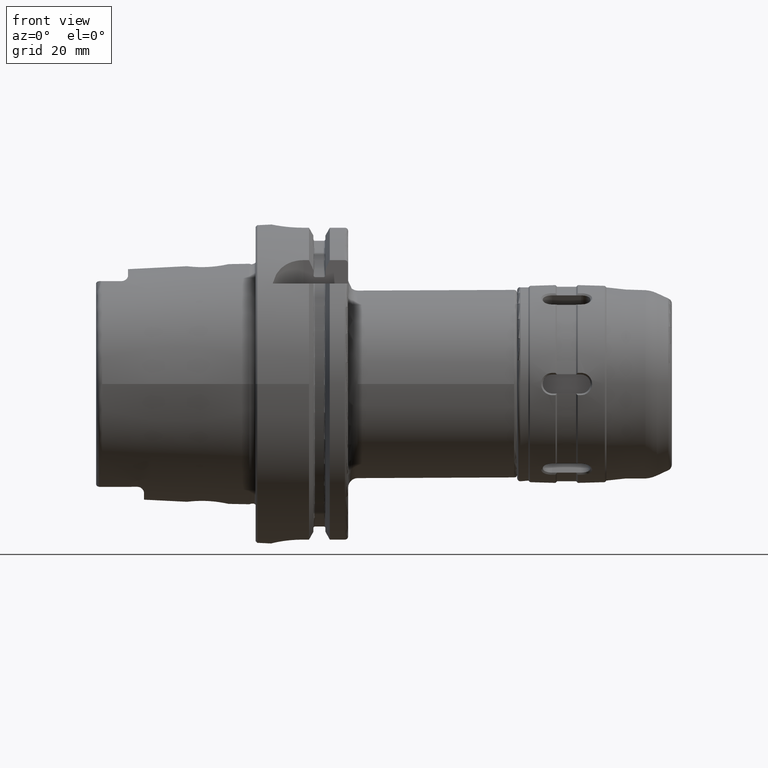
[diagram: clean part render]
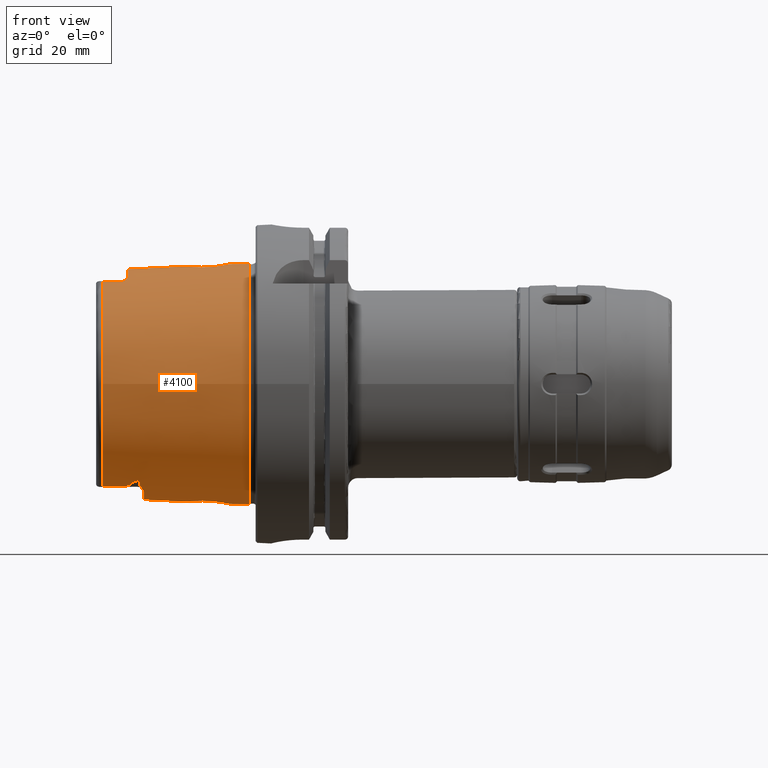
[diagram: same view with one face highlighted and labeled with its STEP entity id]
A machine part, front view. The second image highlights one B-rep face of the part: STEP entity #4100.
In plain terms, the highlighted conical surface has half-angle 2.868 deg.
Its self-contained STEP definition (entity closure, byte-faithful):
#29=(
BOUNDED_CURVE()
B_SPLINE_CURVE(2,(#6570,#6571,#6572),.UNSPECIFIED.,.F.,.F.)
B_SPLINE_CURVE_WITH_KNOTS((3,3),(0.584552731684763,1.01274112792473),
 .UNSPECIFIED.)
CURVE()
GEOMETRIC_REPRESENTATION_ITEM()
RATIONAL_B_SPLINE_CURVE((1.00299496728687,1.00299496728687,1.00138797244737))
REPRESENTATION_ITEM('')
);
#30=(
BOUNDED_CURVE()
B_SPLINE_CURVE(2,(#6639,#6640,#6641),.UNSPECIFIED.,.F.,.F.)
B_SPLINE_CURVE_WITH_KNOTS((3,3),(0.156364335444822,0.584552731684782),
 .UNSPECIFIED.)
CURVE()
GEOMETRIC_REPRESENTATION_ITEM()
RATIONAL_B_SPLINE_CURVE((1.00138797244738,1.00299496728688,1.00299496728688))
REPRESENTATION_ITEM('')
);
#106=B_SPLINE_CURVE_WITH_KNOTS('',3,(#6249,#6250,#6251,#6252,#6253,#6254,
#6255,#6256,#6257,#6258,#6259,#6260,#6261,#6262,#6263,#6264,#6265,#6266),
 .UNSPECIFIED.,.F.,.F.,(4,2,2,2,2,2,2,2,4),(1.82139636410114,1.83165892733975,
1.84192149057836,1.86244661705558,1.93660019990987,2.01075378276416,2.21475865094393,
2.41876351912369,2.7012608097453),.UNSPECIFIED.);
#107=B_SPLINE_CURVE_WITH_KNOTS('',3,(#6291,#6292,#6293,#6294,#6295,#6296,
#6297,#6298,#6299,#6300,#6301,#6302,#6303,#6304,#6305,#6306,#6307,#6308),
 .UNSPECIFIED.,.F.,.F.,(4,2,2,2,2,2,2,2,4),(0.941531918456969,1.22402920907858,
1.42803407725834,1.6320389454381,1.70619252829239,1.78034611114668,1.80087123762391,
1.81113380086252,1.82139636410113),.UNSPECIFIED.);
#110=B_SPLINE_CURVE_WITH_KNOTS('',3,(#6359,#6360,#6361,#6362,#6363,#6364,
#6365,#6366),.UNSPECIFIED.,.F.,.F.,(4,2,2,4),(2.11861414458057,2.2150675983984,
2.41910198133518,2.70152248778045),.UNSPECIFIED.);
#111=B_SPLINE_CURVE_WITH_KNOTS('',3,(#6383,#6384,#6385,#6386,#6387,#6388,
#6389,#6390),.UNSPECIFIED.,.F.,.F.,(4,2,2,4),(0.941785791175404,1.22420629762067,
1.42824068055745,1.52469413437528),.UNSPECIFIED.);
#115=B_SPLINE_CURVE_WITH_KNOTS('',3,(#6537,#6538,#6539,#6540,#6541,#6542,
#6543,#6544,#6545,#6546,#6547,#6548,#6549,#6550,#6551,#6552,#6553,#6554,
#6555,#6556,#6557,#6558,#6559,#6560),.UNSPECIFIED.,.T.,.F.,(4,1,1,1,1,1,
1,1,1,1,1,1,1,1,1,1,1,1,1,1,1,4),(-3.62526060553391,-3.36631341942435,-3.23683982636957,
-3.10736623331478,-2.91315584373261,-2.84841904720522,-2.58947186109565,
-2.41684040368928,-2.2442089462829,-2.07157748887652,-1.89894603147015,
-1.72631457406377,-1.55368311665739,-1.42420952360261,-1.29473593054783,
-1.16526233749304,-1.03578874443826,-0.776841558328696,-0.517894372219131,
-0.388420779164348,-0.258947186109565,0.),.UNSPECIFIED.);
#116=B_SPLINE_CURVE_WITH_KNOTS('',3,(#6574,#6575,#6576,#6577,#6578,#6579,
#6580,#6581,#6582,#6583,#6584,#6585,#6586,#6587,#6588,#6589,#6590,#6591),
 .UNSPECIFIED.,.F.,.F.,(4,2,2,2,2,2,2,2,4),(0.,0.135304265390776,0.202956398086165,
0.270608530781553,0.285985760505599,0.293674375367623,0.301362990229646,
0.309065814809453,0.312240543595572),.UNSPECIFIED.);
#117=B_SPLINE_CURVE_WITH_KNOTS('',3,(#6593,#6594,#6595,#6596,#6597,#6598,
#6599,#6600,#6601,#6602),.UNSPECIFIED.,.F.,.F.,(4,2,2,2,4),(0.355882377061024,
0.475337474766741,0.814409309765131,0.916871755852837,0.96838361555764),
 .UNSPECIFIED.);
#118=B_SPLINE_CURVE_WITH_KNOTS('',3,(#6606,#6607,#6608,#6609,#6610,#6611,
#6612,#6613,#6614,#6615,#6616,#6617,#6618,#6619),.UNSPECIFIED.,.F.,.F.,
(4,2,2,2,2,2,4),(0.968383615555967,0.974150710871355,1.03435732628962,1.16414359525928,
1.35274565404034,1.53834753535542,1.54014497255958),.UNSPECIFIED.);
#119=B_SPLINE_CURVE_WITH_KNOTS('',3,(#6621,#6622,#6623,#6624,#6625,#6626,
#6627,#6628,#6629,#6630,#6631,#6632,#6633,#6634,#6635,#6636,#6637,#6638),
 .UNSPECIFIED.,.F.,.F.,(4,2,2,2,2,2,2,2,4),(0.892798921569994,0.895973650356143,
0.90367647493595,0.911365089797973,0.919053704659997,0.934430934384044,
1.00208306707943,1.06973519977482,1.2050394651656),.UNSPECIFIED.);
#120=B_SPLINE_CURVE_WITH_KNOTS('',3,(#6644,#6645,#6646,#6647,#6648,#6649,
#6650,#6651,#6652,#6653,#6654,#6655,#6656,#6657,#6658,#6659),
 .UNSPECIFIED.,.F.,.F.,(4,2,2,2,2,2,2,4),(0.951925610593878,1.05814966490865,
1.29620724180457,1.38654842311884,1.45440735886397,1.51777192589664,1.5739379106757,
1.5771381713645),.UNSPECIFIED.);
#121=B_SPLINE_CURVE_WITH_KNOTS('',3,(#6662,#6663,#6664,#6665,#6666,#6667,
#6668,#6669,#6670,#6671,#6672,#6673,#6674,#6675),.UNSPECIFIED.,.F.,.F.,
(4,2,2,2,2,2,4),(0.58599893881899,0.631178615969429,0.682399631951053,0.741327952008913,
0.839467365471938,1.06407790070645,1.25314135766173),.UNSPECIFIED.);
#122=B_SPLINE_CURVE_WITH_KNOTS('',3,(#6678,#6679,#6680,#6681,#6682,#6683,
#6684,#6685,#6686,#6687,#6688,#6689,#6690,#6691,#6692,#6693,#6694,#6695,
#6696,#6697,#6698,#6699,#6700,#6701,#6702,#6703),.UNSPECIFIED.,.T.,.F.,
(4,1,1,1,1,1,1,1,1,1,1,1,1,1,1,1,1,1,1,1,1,1,1,4),(-3.62526060553391,-3.36631341942435,
-3.23683982636957,-3.13973463157848,-3.10736623331478,-2.84841904720522,
-2.58947186109565,-2.41684040368928,-2.2442089462829,-2.2010510819313,-2.07157748887652,
-1.89894603147015,-1.72631457406377,-1.55368311665739,-1.42420952360261,
-1.29473593054783,-1.16526233749304,-1.03578874443826,-0.776841558328696,
-0.712104761801304,-0.51789437221913,-0.388420779164348,-0.258947186109565,
0.),.UNSPECIFIED.);
#194=CONICAL_SURFACE('',#4461,36.7524901081155,0.0500583457465976);
#234=FACE_BOUND('',#1155,.T.);
#235=FACE_BOUND('',#1156,.T.);
#378=LINE('',#6567,#619);
#619=VECTOR('',#5091,36.7524901081155);
#915=FACE_OUTER_BOUND('',#1154,.T.);
#1154=EDGE_LOOP('',(#2895,#2896,#2897,#2898,#2899,#2900,#2901,#2902,#2903,
#2904,#2905,#2906,#2907,#2908,#2909,#2910,#2911,#2912,#2913,#2914,#2915));
#1155=EDGE_LOOP('',(#2916));
#1156=EDGE_LOOP('',(#2917));
#1419=CIRCLE('',#4462,37.9073016032064);
#1420=CIRCLE('',#4463,37.9073016032064);
#1421=CIRCLE('',#4464,35.5976786130245);
#1422=CIRCLE('',#4465,36.25399498998);
#1423=CIRCLE('',#4466,35.5976786130245);
#1424=CIRCLE('',#4467,36.003493987976);
#1425=CIRCLE('',#4468,35.5976786130245);
#1686=VERTEX_POINT('',#6235);
#1687=VERTEX_POINT('',#6248);
#1697=VERTEX_POINT('',#6288);
#1698=VERTEX_POINT('',#6290);
#1708=VERTEX_POINT('',#6345);
#1709=VERTEX_POINT('',#6358);
#1715=VERTEX_POINT('',#6380);
#1716=VERTEX_POINT('',#6382);
#1719=VERTEX_POINT('',#6505);
#1722=VERTEX_POINT('',#6562);
#1723=VERTEX_POINT('',#6563);
#1724=VERTEX_POINT('',#6566);
#1725=VERTEX_POINT('',#6569);
#1726=VERTEX_POINT('',#6573);
#1727=VERTEX_POINT('',#6592);
#1728=VERTEX_POINT('',#6603);
#1729=VERTEX_POINT('',#6605);
#1730=VERTEX_POINT('',#6620);
#1731=VERTEX_POINT('',#6643);
#1732=VERTEX_POINT('',#6660);
#1733=VERTEX_POINT('',#6677);
#2140=EDGE_CURVE('',#1687,#1686,#106,.T.);
#2152=EDGE_CURVE('',#1698,#1697,#107,.T.);
#2166=EDGE_CURVE('',#1709,#1708,#110,.T.);
#2174=EDGE_CURVE('',#1716,#1715,#111,.T.);
#2182=EDGE_CURVE('',#1719,#1719,#115,.T.);
#2183=EDGE_CURVE('',#1722,#1723,#1419,.T.);
#2184=EDGE_CURVE('',#1723,#1722,#1420,.T.);
#2185=EDGE_CURVE('',#1723,#1724,#378,.T.);
#2186=EDGE_CURVE('',#1724,#1698,#1421,.T.);
#2187=EDGE_CURVE('',#1697,#1725,#29,.T.);
#2188=EDGE_CURVE('',#1726,#1725,#116,.T.);
#2189=EDGE_CURVE('',#1727,#1726,#117,.T.);
#2190=EDGE_CURVE('',#1727,#1728,#1422,.T.);
#2191=EDGE_CURVE('',#1729,#1728,#118,.T.);
#2192=EDGE_CURVE('',#1730,#1729,#119,.T.);
#2193=EDGE_CURVE('',#1730,#1687,#30,.T.);
#2194=EDGE_CURVE('',#1686,#1716,#1423,.T.);
#2195=EDGE_CURVE('',#1731,#1715,#120,.T.);
#2196=EDGE_CURVE('',#1731,#1732,#1424,.T.);
#2197=EDGE_CURVE('',#1709,#1732,#121,.T.);
#2198=EDGE_CURVE('',#1708,#1724,#1425,.T.);
#2199=EDGE_CURVE('',#1733,#1733,#122,.T.);
#2895=ORIENTED_EDGE('',*,*,#2183,.F.);
#2896=ORIENTED_EDGE('',*,*,#2184,.F.);
#2897=ORIENTED_EDGE('',*,*,#2185,.T.);
#2898=ORIENTED_EDGE('',*,*,#2186,.T.);
#2899=ORIENTED_EDGE('',*,*,#2152,.T.);
#2900=ORIENTED_EDGE('',*,*,#2187,.T.);
#2901=ORIENTED_EDGE('',*,*,#2188,.F.);
#2902=ORIENTED_EDGE('',*,*,#2189,.F.);
#2903=ORIENTED_EDGE('',*,*,#2190,.T.);
#2904=ORIENTED_EDGE('',*,*,#2191,.F.);
#2905=ORIENTED_EDGE('',*,*,#2192,.F.);
#2906=ORIENTED_EDGE('',*,*,#2193,.T.);
#2907=ORIENTED_EDGE('',*,*,#2140,.T.);
#2908=ORIENTED_EDGE('',*,*,#2194,.T.);
#2909=ORIENTED_EDGE('',*,*,#2174,.T.);
#2910=ORIENTED_EDGE('',*,*,#2195,.F.);
#2911=ORIENTED_EDGE('',*,*,#2196,.T.);
#2912=ORIENTED_EDGE('',*,*,#2197,.F.);
#2913=ORIENTED_EDGE('',*,*,#2166,.T.);
#2914=ORIENTED_EDGE('',*,*,#2198,.T.);
#2915=ORIENTED_EDGE('',*,*,#2185,.F.);
#2916=ORIENTED_EDGE('',*,*,#2199,.F.);
#2917=ORIENTED_EDGE('',*,*,#2182,.F.);
#4100=ADVANCED_FACE('',(#915,#234,#235),#194,.T.);
#4461=AXIS2_PLACEMENT_3D('',#6561,#5085,#5086);
#4462=AXIS2_PLACEMENT_3D('',#6564,#5087,#5088);
#4463=AXIS2_PLACEMENT_3D('',#6565,#5089,#5090);
#4464=AXIS2_PLACEMENT_3D('',#6568,#5092,#5093);
#4465=AXIS2_PLACEMENT_3D('',#6604,#5094,#5095);
#4466=AXIS2_PLACEMENT_3D('',#6642,#5096,#5097);
#4467=AXIS2_PLACEMENT_3D('',#6661,#5098,#5099);
#4468=AXIS2_PLACEMENT_3D('',#6676,#5100,#5101);
#5085=DIRECTION('center_axis',(1.,0.,0.));
#5086=DIRECTION('ref_axis',(0.,1.,0.));
#5087=DIRECTION('center_axis',(1.,0.,0.));
#5088=DIRECTION('ref_axis',(0.,0.,-1.));
#5089=DIRECTION('center_axis',(1.,0.,0.));
#5090=DIRECTION('ref_axis',(0.,0.,-1.));
#5091=DIRECTION('',(-0.998747342623037,0.0500374420151823,6.12781932014143E-18));
#5092=DIRECTION('center_axis',(1.,0.,0.));
#5093=DIRECTION('ref_axis',(0.,0.,-1.));
#5094=DIRECTION('center_axis',(1.,0.,0.));
#5095=DIRECTION('ref_axis',(0.,1.,0.));
#5096=DIRECTION('center_axis',(1.,0.,0.));
#5097=DIRECTION('ref_axis',(0.,0.,-1.));
#5098=DIRECTION('center_axis',(1.,0.,0.));
#5099=DIRECTION('ref_axis',(0.,1.,0.));
#5100=DIRECTION('center_axis',(1.,0.,0.));
#5101=DIRECTION('ref_axis',(0.,0.,-1.));
#6235=CARTESIAN_POINT('',(-48.1000748840304,15.0787152148571,-32.2463497175327));
#6248=CARTESIAN_POINT('',(-39.3086860506441,17.2220784153651,-31.6567015600095));
#6249=CARTESIAN_POINT('Ctrl Pts',(-39.3086860506439,17.2220784153651,-31.6567015600096));
#6250=CARTESIAN_POINT('Ctrl Pts',(-39.3086860506439,17.1920288621925,-31.6730493074242));
#6251=CARTESIAN_POINT('Ctrl Pts',(-39.3149778656361,17.1622985367362,-31.6888083298259));
#6252=CARTESIAN_POINT('Ctrl Pts',(-39.3379356243704,17.1047575471073,-31.7185977246152));
#6253=CARTESIAN_POINT('Ctrl Pts',(-39.3545931085757,17.0769444761517,-31.7326299669));
#6254=CARTESIAN_POINT('Ctrl Pts',(-39.41492287308,16.9977687004959,-31.7717242618145));
#6255=CARTESIAN_POINT('Ctrl Pts',(-39.4690330405114,16.9505386197656,-31.7938497879436));
#6256=CARTESIAN_POINT('Ctrl Pts',(-39.7137538085318,16.7691556019457,-31.8763882092881));
#6257=CARTESIAN_POINT('Ctrl Pts',(-39.9557031082111,16.6668123685081,-31.9161154581445));
#6258=CARTESIAN_POINT('Ctrl Pts',(-40.4538120390228,16.4807891402054,-31.9844991546727));
#6259=CARTESIAN_POINT('Ctrl Pts',(-40.7121103138056,16.4018770942044,-32.0104206666339));
#6260=CARTESIAN_POINT('Ctrl Pts',(-41.6015350915672,16.1516844838416,-32.0879931345296));
#6261=CARTESIAN_POINT('Ctrl Pts',(-42.2774968259687,16.0065639510366,-32.1225120780024));
#6262=CARTESIAN_POINT('Ctrl Pts',(-43.6583569770469,15.7387900082285,-32.1775602969968));
#6263=CARTESIAN_POINT('Ctrl Pts',(-44.3638273319757,15.6187903492069,-32.19660809961));
#6264=CARTESIAN_POINT('Ctrl Pts',(-46.0708874643597,15.3507400024476,-32.2307282620297));
#6265=CARTESIAN_POINT('Ctrl Pts',(-47.0815953489825,15.2100460868363,-32.2412671998384));
#6266=CARTESIAN_POINT('Ctrl Pts',(-48.1000748840303,15.0787152148571,-32.2463497175327));
#6288=CARTESIAN_POINT('',(-39.3086860506441,-17.2220784153651,-31.6567015600095));
#6290=CARTESIAN_POINT('',(-48.1000748840304,-15.0787152148571,-32.2463497175327));
#6291=CARTESIAN_POINT('Ctrl Pts',(-48.1000748840304,-15.0787152148571,-32.2463497175327));
#6292=CARTESIAN_POINT('Ctrl Pts',(-47.0815953489825,-15.2100460868363,-32.2412671998384));
#6293=CARTESIAN_POINT('Ctrl Pts',(-46.0708874643597,-15.3507400024476,-32.2307282620297));
#6294=CARTESIAN_POINT('Ctrl Pts',(-44.3638273319757,-15.6187903492069,-32.19660809961));
#6295=CARTESIAN_POINT('Ctrl Pts',(-43.6583569770469,-15.7387900082285,-32.1775602969968));
#6296=CARTESIAN_POINT('Ctrl Pts',(-42.2774968259687,-16.0065639510366,-32.1225120780024));
#6297=CARTESIAN_POINT('Ctrl Pts',(-41.6015350915672,-16.1516844838416,-32.0879931345296));
#6298=CARTESIAN_POINT('Ctrl Pts',(-40.7121103138057,-16.4018770942044,-32.0104206666339));
#6299=CARTESIAN_POINT('Ctrl Pts',(-40.4538120390228,-16.4807891402054,-31.9844991546726));
#6300=CARTESIAN_POINT('Ctrl Pts',(-39.9557031082111,-16.6668123685081,-31.9161154581445));
#6301=CARTESIAN_POINT('Ctrl Pts',(-39.7137538085319,-16.7691556019457,-31.8763882092881));
#6302=CARTESIAN_POINT('Ctrl Pts',(-39.4690330405114,-16.9505386197656,-31.7938497879436));
#6303=CARTESIAN_POINT('Ctrl Pts',(-39.41492287308,-16.9977687004959,-31.7717242618145));
#6304=CARTESIAN_POINT('Ctrl Pts',(-39.3545931085758,-17.0769444761517,-31.7326299669));
#6305=CARTESIAN_POINT('Ctrl Pts',(-39.3379356243703,-17.1047575471073,-31.7185977246152));
#6306=CARTESIAN_POINT('Ctrl Pts',(-39.314977865636,-17.1622985367361,-31.688808329826));
#6307=CARTESIAN_POINT('Ctrl Pts',(-39.3086860506439,-17.1920288621925,-31.6730493074242));
#6308=CARTESIAN_POINT('Ctrl Pts',(-39.3086860506439,-17.2220784153651,-31.6567015600096));
#6345=CARTESIAN_POINT('',(-48.1000748840304,-15.0787152148571,32.2463497175327));
#6358=CARTESIAN_POINT('',(-42.0000000002536,-16.0736316900317,32.1042809403702));
#6359=CARTESIAN_POINT('Ctrl Pts',(-42.0000000002663,-16.0736316900856,32.1042809403568));
#6360=CARTESIAN_POINT('Ctrl Pts',(-42.3189705746531,-16.0023328339441,32.122106579912));
#6361=CARTESIAN_POINT('Ctrl Pts',(-42.6420078541405,-15.9358744877955,32.1370456038288));
#6362=CARTESIAN_POINT('Ctrl Pts',(-43.6589764923173,-15.7386786248219,32.177580265585));
#6363=CARTESIAN_POINT('Ctrl Pts',(-44.364550975751,-15.6186692080222,32.1966265955614));
#6364=CARTESIAN_POINT('Ctrl Pts',(-46.0714496280263,-15.3506621075505,32.2307339275334));
#6365=CARTESIAN_POINT('Ctrl Pts',(-47.0818768820559,-15.210009783717,32.2412686047727));
#6366=CARTESIAN_POINT('Ctrl Pts',(-48.1000748840304,-15.0787152148571,32.2463497175327));
#6380=CARTESIAN_POINT('',(-42.0000000002536,16.0736316900317,32.1042809403702));
#6382=CARTESIAN_POINT('',(-48.1000748840304,15.0787152148571,32.2463497175327));
#6383=CARTESIAN_POINT('Ctrl Pts',(-48.1000748840304,15.0787152148571,32.2463497175327));
#6384=CARTESIAN_POINT('Ctrl Pts',(-47.0818768820559,15.210009783717,32.2412686047727));
#6385=CARTESIAN_POINT('Ctrl Pts',(-46.0714496280263,15.3506621075505,32.2307339275334));
#6386=CARTESIAN_POINT('Ctrl Pts',(-44.364550975751,15.6186692080222,32.1966265955614));
#6387=CARTESIAN_POINT('Ctrl Pts',(-43.6589764923172,15.7386786248219,32.177580265585));
#6388=CARTESIAN_POINT('Ctrl Pts',(-42.6420078541405,15.9358744877955,32.1370456038288));
#6389=CARTESIAN_POINT('Ctrl Pts',(-42.3189705746531,16.0023328339441,32.122106579912));
#6390=CARTESIAN_POINT('Ctrl Pts',(-42.0000000002663,16.0736316900856,32.1042809403568));
#6505=CARTESIAN_POINT('',(-15.0482435047104,6.49272743621066,-36.6834276129017));
#6537=CARTESIAN_POINT('Ctrl Pts',(-15.0482435047104,6.49272743621066,-36.6834276129017));
#6538=CARTESIAN_POINT('Ctrl Pts',(-14.1135545674523,6.50026995600844,-36.7296485677624));
#6539=CARTESIAN_POINT('Ctrl Pts',(-12.6125862949105,6.18830817118321,-36.8646717861154));
#6540=CARTESIAN_POINT('Ctrl Pts',(-10.9355263213122,5.13385394303874,-37.1097128714846));
#6541=CARTESIAN_POINT('Ctrl Pts',(-9.77420691042437,3.99872482551772,-37.3124990416381));
#6542=CARTESIAN_POINT('Ctrl Pts',(-9.01389114298067,2.6908920183028,-37.4692616165149));
#6543=CARTESIAN_POINT('Ctrl Pts',(-8.45620136187699,0.783918842134784,-37.5909415665212));
#6544=CARTESIAN_POINT('Ctrl Pts',(-8.42050281053454,-1.03174264349175,-37.5987683444945));
#6545=CARTESIAN_POINT('Ctrl Pts',(-9.26297266549275,-3.26583075674904,-37.4147206754643));
#6546=CARTESIAN_POINT('Ctrl Pts',(-10.458492519938,-4.76885929810559,-37.1861403632723));
#6547=CARTESIAN_POINT('Ctrl Pts',(-12.0228887870965,-5.89032438834427,-36.9420532655873));
#6548=CARTESIAN_POINT('Ctrl Pts',(-13.9680532212746,-6.50710199210242,-36.7359370633354));
#6549=CARTESIAN_POINT('Ctrl Pts',(-15.8440764393336,-6.52958618717481,-36.6362816769022));
#6550=CARTESIAN_POINT('Ctrl Pts',(-17.6300730630046,-6.03011079587191,-36.6335589552162));
#6551=CARTESIAN_POINT('Ctrl Pts',(-19.0454046322519,-5.14759442471502,-36.6975665887127));
#6552=CARTESIAN_POINT('Ctrl Pts',(-20.0509032742539,-4.16499804110167,-36.7727593560743));
#6553=CARTESIAN_POINT('Ctrl Pts',(-20.8701749498926,-2.92631384107143,-36.8543936474532));
#6554=CARTESIAN_POINT('Ctrl Pts',(-21.5409373453018,-1.02232892624704,-36.9349482957206));
#6555=CARTESIAN_POINT('Ctrl Pts',(-21.5837880668158,1.35571299008144,-36.9401169281877));
#6556=CARTESIAN_POINT('Ctrl Pts',(-20.4818838939864,3.73437449889082,-36.8075944881395));
#6557=CARTESIAN_POINT('Ctrl Pts',(-19.1568247034836,5.05418616406115,-36.7047525113947));
#6558=CARTESIAN_POINT('Ctrl Pts',(-17.4931824437517,6.14967739850973,-36.6242770442053));
#6559=CARTESIAN_POINT('Ctrl Pts',(-15.9829324419684,6.48518491641288,-36.637206658041));
#6560=CARTESIAN_POINT('Ctrl Pts',(-15.0482435047104,6.49272743621066,-36.6834276129017));
#6561=CARTESIAN_POINT('Origin',(-25.0500374420152,0.,0.));
#6562=CARTESIAN_POINT('',(-2.,37.9073016032064,0.));
#6563=CARTESIAN_POINT('',(-2.,-37.9073016032064,-4.64230555726801E-15));
#6564=CARTESIAN_POINT('Origin',(-2.,0.,0.));
#6565=CARTESIAN_POINT('Origin',(-2.,0.,0.));
#6566=CARTESIAN_POINT('',(-48.1000748840304,-35.5976786130245,-4.35945831705167E-15));
#6567=CARTESIAN_POINT('',(-25.0500374420152,-36.7524901081155,-4.50088193715984E-15));
#6568=CARTESIAN_POINT('Origin',(-48.1000748840304,0.,0.));
#6569=CARTESIAN_POINT('',(-36.9999999999998,-19.7604190654811,-30.275777472314));
#6570=CARTESIAN_POINT('Ctrl Pts',(-39.3086860506441,-17.2220784153651,-31.6567015600095));
#6571=CARTESIAN_POINT('Ctrl Pts',(-39.3086860506441,-18.4892152804039,-30.9673457719047));
#6572=CARTESIAN_POINT('Ctrl Pts',(-37.0000000000089,-19.760419065476,-30.2757774723168));
#6573=CARTESIAN_POINT('',(-36.2297931655992,-17.2957936700592,-31.7922009905656));
#6574=CARTESIAN_POINT('Ctrl Pts',(-36.2297931655991,-17.2957936700592,-31.7922009905656));
#6575=CARTESIAN_POINT('Ctrl Pts',(-36.2297931655991,-17.6919746847632,-31.5766680965597));
#6576=CARTESIAN_POINT('Ctrl Pts',(-36.2521990165892,-18.1190045646745,-31.3326752508756));
#6577=CARTESIAN_POINT('Ctrl Pts',(-36.3408092415002,-18.7314387685111,-30.9624943289716));
#6578=CARTESIAN_POINT('Ctrl Pts',(-36.3790895444364,-18.9299841471613,-30.8391450528654));
#6579=CARTESIAN_POINT('Ctrl Pts',(-36.4852329136377,-19.306843178886,-30.5983353090591));
#6580=CARTESIAN_POINT('Ctrl Pts',(-36.5439103950281,-19.4871821233798,-30.4800880558704));
#6581=CARTESIAN_POINT('Ctrl Pts',(-36.6912326687357,-19.6798076445983,-30.3467082687203));
#6582=CARTESIAN_POINT('Ctrl Pts',(-36.7249701183787,-19.7165113518141,-30.3208469816645));
#6583=CARTESIAN_POINT('Ctrl Pts',(-36.7841864173308,-19.7579943063986,-30.290274608581));
#6584=CARTESIAN_POINT('Ctrl Pts',(-36.8053838947294,-19.7694984454156,-30.2814962901986));
#6585=CARTESIAN_POINT('Ctrl Pts',(-36.8506143317697,-19.7854180725537,-30.2683898183443));
#6586=CARTESIAN_POINT('Ctrl Pts',(-36.8746547533364,-19.7898201350064,-30.264071114845));
#6587=CARTESIAN_POINT('Ctrl Pts',(-36.925895284142,-19.7884151696532,-30.2619225368856));
#6588=CARTESIAN_POINT('Ctrl Pts',(-36.9499861453108,-19.7826799175172,-30.2642318432453));
#6589=CARTESIAN_POINT('Ctrl Pts',(-36.9820207117301,-19.7696848900689,-30.2708039920388));
#6590=CARTESIAN_POINT('Ctrl Pts',(-36.9911306097576,-19.7653027102035,-30.273120641115));
#6591=CARTESIAN_POINT('Ctrl Pts',(-36.9999999999997,-19.760419065481,-30.275777472314));
#6592=CARTESIAN_POINT('',(-35.,-12.7918651267415,-33.9222690767105));
#6593=CARTESIAN_POINT('Ctrl Pts',(-35.,-12.7918651267426,-33.9222690767101));
#6594=CARTESIAN_POINT('Ctrl Pts',(-35.0000000000001,-13.2716695445343,-33.7413379784475));
#6595=CARTESIAN_POINT('Ctrl Pts',(-35.0765460606978,-13.7105867284853,-33.5594062083601));
#6596=CARTESIAN_POINT('Ctrl Pts',(-35.3935172162449,-15.0275145848391,-32.9882321567447));
#6597=CARTESIAN_POINT('Ctrl Pts',(-35.8272793338039,-15.8448282797016,-32.5701705725068));
#6598=CARTESIAN_POINT('Ctrl Pts',(-36.1303536788273,-16.6786905371956,-32.126600714556));
#6599=CARTESIAN_POINT('Ctrl Pts',(-36.1820664850684,-16.8557754437463,-32.030984619072));
#6600=CARTESIAN_POINT('Ctrl Pts',(-36.2225122577352,-17.1184652869411,-31.8886039957027));
#6601=CARTESIAN_POINT('Ctrl Pts',(-36.2297931655992,-17.2061020907562,-31.8409955691488));
#6602=CARTESIAN_POINT('Ctrl Pts',(-36.2297931655992,-17.2957936700592,-31.7922009905656));
#6603=CARTESIAN_POINT('',(-35.,12.7918651267415,-33.9222690767105));
#6604=CARTESIAN_POINT('Origin',(-35.,0.,0.));
#6605=CARTESIAN_POINT('',(-36.2297931655992,17.2957936700592,-31.7922009905656));
#6606=CARTESIAN_POINT('Ctrl Pts',(-36.2297931655992,17.2957936700592,-31.7922009905656));
#6607=CARTESIAN_POINT('Ctrl Pts',(-36.2297931655992,17.2857521011896,-31.7976638681859));
#6608=CARTESIAN_POINT('Ctrl Pts',(-36.2297018732724,17.2756840159163,-31.8031402140989));
#6609=CARTESIAN_POINT('Ctrl Pts',(-36.2275970792751,17.1601682556352,-31.8659616470356));
#6610=CARTESIAN_POINT('Ctrl Pts',(-36.2156218316917,17.0562072347613,-31.922407942335));
#6611=CARTESIAN_POINT('Ctrl Pts',(-36.1505093185127,16.7229293390599,-32.1027521967692));
#6612=CARTESIAN_POINT('Ctrl Pts',(-36.065134056668,16.4848506381079,-32.2308215310631));
#6613=CARTESIAN_POINT('Ctrl Pts',(-35.7984585549742,15.8312737268516,-32.5732245714574));
#6614=CARTESIAN_POINT('Ctrl Pts',(-35.5744019673667,15.3507133777923,-32.8174718312589));
#6615=CARTESIAN_POINT('Ctrl Pts',(-35.1938633470317,14.2651773499191,-33.3242510091415));
#6616=CARTESIAN_POINT('Ctrl Pts',(-35.0037140190077,13.5715015976815,-33.6275053772421));
#6617=CARTESIAN_POINT('Ctrl Pts',(-35.0000176891147,12.8065033311274,-33.9167454576574));
#6618=CARTESIAN_POINT('Ctrl Pts',(-35.,12.7991780985434,-33.9195114030197));
#6619=CARTESIAN_POINT('Ctrl Pts',(-35.,12.7918651267414,-33.9222690767105));
#6620=CARTESIAN_POINT('',(-37.,19.7604190654809,-30.2757774723141));
#6621=CARTESIAN_POINT('Ctrl Pts',(-37.,19.760419065481,-30.2757774723141));
#6622=CARTESIAN_POINT('Ctrl Pts',(-36.9911306097578,19.7653027102035,-30.273120641115));
#6623=CARTESIAN_POINT('Ctrl Pts',(-36.9820207117302,19.769684890069,-30.2708039920388));
#6624=CARTESIAN_POINT('Ctrl Pts',(-36.9499861453108,19.7826799175173,-30.2642318432453));
#6625=CARTESIAN_POINT('Ctrl Pts',(-36.925895284142,19.7884151696532,-30.2619225368856));
#6626=CARTESIAN_POINT('Ctrl Pts',(-36.8746547533364,19.7898201350064,-30.264071114845));
#6627=CARTESIAN_POINT('Ctrl Pts',(-36.8506143317697,19.7854180725537,-30.2683898183443));
#6628=CARTESIAN_POINT('Ctrl Pts',(-36.8053838947294,19.7694984454156,-30.2814962901986));
#6629=CARTESIAN_POINT('Ctrl Pts',(-36.7841864173308,19.7579943063986,-30.290274608581));
#6630=CARTESIAN_POINT('Ctrl Pts',(-36.7249701183787,19.7165113518141,-30.3208469816645));
#6631=CARTESIAN_POINT('Ctrl Pts',(-36.6912326687357,19.6798076445984,-30.3467082687203));
#6632=CARTESIAN_POINT('Ctrl Pts',(-36.5439103950281,19.4871821233798,-30.4800880558704));
#6633=CARTESIAN_POINT('Ctrl Pts',(-36.4852329136378,19.306843178886,-30.5983353090591));
#6634=CARTESIAN_POINT('Ctrl Pts',(-36.3790895444365,18.9299841471613,-30.8391450528654));
#6635=CARTESIAN_POINT('Ctrl Pts',(-36.3408092415002,18.7314387685111,-30.9624943289715));
#6636=CARTESIAN_POINT('Ctrl Pts',(-36.2521990165892,18.1190045646745,-31.3326752508756));
#6637=CARTESIAN_POINT('Ctrl Pts',(-36.2297931655991,17.6919746847632,-31.5766680965597));
#6638=CARTESIAN_POINT('Ctrl Pts',(-36.2297931655991,17.2957936700592,-31.7922009905656));
#6639=CARTESIAN_POINT('Ctrl Pts',(-37.0000000000092,19.7604190654759,-30.2757774723168));
#6640=CARTESIAN_POINT('Ctrl Pts',(-39.3086860506441,18.4892152804039,-30.9673457719048));
#6641=CARTESIAN_POINT('Ctrl Pts',(-39.3086860506441,17.2220784153651,-31.6567015600095));
#6642=CARTESIAN_POINT('Origin',(-48.1000748840304,0.,0.));
#6643=CARTESIAN_POINT('',(-40.,12.4227760464511,33.7923987701664));
#6644=CARTESIAN_POINT('Ctrl Pts',(-40.,12.4227760464511,33.7923987701664));
#6645=CARTESIAN_POINT('Ctrl Pts',(-40.,12.7419527823378,33.6750628824087));
#6646=CARTESIAN_POINT('Ctrl Pts',(-40.0375731646412,13.0776475996579,33.5444889562855));
#6647=CARTESIAN_POINT('Ctrl Pts',(-40.2952030220137,14.204338882917,33.0777059010272));
#6648=CARTESIAN_POINT('Ctrl Pts',(-40.646555500088,14.8752966004784,32.7549341580208));
#6649=CARTESIAN_POINT('Ctrl Pts',(-41.0603895118526,15.4779630836856,32.44836211168));
#6650=CARTESIAN_POINT('Ctrl Pts',(-41.1980205087673,15.6556849566356,32.3552047227428));
#6651=CARTESIAN_POINT('Ctrl Pts',(-41.4545269599315,15.9060673278644,32.2183420240425));
#6652=CARTESIAN_POINT('Ctrl Pts',(-41.5436022580114,15.9688653327575,32.1820824055277));
#6653=CARTESIAN_POINT('Ctrl Pts',(-41.6853529076114,16.0463920787515,32.1355548450209));
#6654=CARTESIAN_POINT('Ctrl Pts',(-41.7512744555391,16.0697812119561,32.1201454390566));
#6655=CARTESIAN_POINT('Ctrl Pts',(-41.8741794719293,16.0889724726195,32.1036488638476));
#6656=CARTESIAN_POINT('Ctrl Pts',(-41.9317167825714,16.0876211043841,32.1011018387604));
#6657=CARTESIAN_POINT('Ctrl Pts',(-41.9933777503431,16.0750788518127,32.1039274012118));
#6658=CARTESIAN_POINT('Ctrl Pts',(-41.9966932024657,16.0743708520026,32.1040961402821));
#6659=CARTESIAN_POINT('Ctrl Pts',(-42.0000000002664,16.0736316900856,32.1042809403568));
#6660=CARTESIAN_POINT('',(-40.,-12.4227760464511,33.7923987701664));
#6661=CARTESIAN_POINT('Origin',(-40.,0.,0.));
#6662=CARTESIAN_POINT('Ctrl Pts',(-42.0000000002664,-16.0736316900856,32.1042809403568));
#6663=CARTESIAN_POINT('Ctrl Pts',(-41.9532981877176,-16.0840708530993,32.1016710140877));
#6664=CARTESIAN_POINT('Ctrl Pts',(-41.9050462288341,-16.0882872456028,32.1022609254704));
#6665=CARTESIAN_POINT('Ctrl Pts',(-41.7973675228035,-16.0800004321419,32.1124461122313));
#6666=CARTESIAN_POINT('Ctrl Pts',(-41.7413360757048,-16.0653619433608,32.1229212478587));
#6667=CARTESIAN_POINT('Ctrl Pts',(-41.6239822044533,-16.0165128109429,32.1538775766807));
#6668=CARTESIAN_POINT('Ctrl Pts',(-41.5522675623989,-15.9755629601737,32.1783316856742));
#6669=CARTESIAN_POINT('Ctrl Pts',(-41.3277927134023,-15.7966592313301,32.2792175155224));
#6670=CARTESIAN_POINT('Ctrl Pts',(-41.1901764677993,-15.6399550711414,32.3632616530429));
#6671=CARTESIAN_POINT('Ctrl Pts',(-40.8198003078492,-15.1566985557665,32.6146257404162));
#6672=CARTESIAN_POINT('Ctrl Pts',(-40.5143326017071,-14.6456107207803,32.868966839454));
#6673=CARTESIAN_POINT('Ctrl Pts',(-40.1039820766269,-13.4955400218785,33.3777943404952));
#6674=CARTESIAN_POINT('Ctrl Pts',(-40.,-12.9546784960247,33.5968605648276));
#6675=CARTESIAN_POINT('Ctrl Pts',(-40.,-12.422776046451,33.7923987701664));
#6676=CARTESIAN_POINT('Origin',(-48.1000748840304,0.,0.));
#6677=CARTESIAN_POINT('',(-15.0482435047104,6.49272743621066,36.6834276129017));
#6678=CARTESIAN_POINT('Ctrl Pts',(-15.0482435047104,6.49272743621066,36.6834276129017));
#6679=CARTESIAN_POINT('Ctrl Pts',(-15.9829324419684,6.48518491641288,36.637206658041));
#6680=CARTESIAN_POINT('Ctrl Pts',(-17.4866023410943,6.1492077495217,36.6235790675961));
#6681=CARTESIAN_POINT('Ctrl Pts',(-19.0577948349359,5.12534251951808,36.7000400389206));
#6682=CARTESIAN_POINT('Ctrl Pts',(-19.7285341214944,4.47535633862254,36.7489785200356));
#6683=CARTESIAN_POINT('Ctrl Pts',(-20.6550188198957,3.37673173572321,36.8280268143641));
#6684=CARTESIAN_POINT('Ctrl Pts',(-21.5767265446075,1.36398348816804,36.93957893606));
#6685=CARTESIAN_POINT('Ctrl Pts',(-21.546724865986,-1.1898750248608,36.9354628300056));
#6686=CARTESIAN_POINT('Ctrl Pts',(-20.6614810285301,-3.39819593521009,36.8298067136365));
#6687=CARTESIAN_POINT('Ctrl Pts',(-19.7299275837876,-4.50878451478095,36.7460018871591));
#6688=CARTESIAN_POINT('Ctrl Pts',(-18.7617072817101,-5.32584036574977,36.6848153804274));
#6689=CARTESIAN_POINT('Ctrl Pts',(-17.6257926470054,-6.02949389457767,36.6338999971975));
#6690=CARTESIAN_POINT('Ctrl Pts',(-15.8516352881468,-6.52976180497178,36.6358727150011));
#6691=CARTESIAN_POINT('Ctrl Pts',(-13.9603354002875,-6.5058868548532,36.736639679508));
#6692=CARTESIAN_POINT('Ctrl Pts',(-12.1928929992637,-5.95072068791055,36.9230706723905));
#6693=CARTESIAN_POINT('Ctrl Pts',(-10.8263000201084,-5.04719821437838,37.1274642889699));
#6694=CARTESIAN_POINT('Ctrl Pts',(-9.85299902234014,-4.05128459645323,37.299862620781));
#6695=CARTESIAN_POINT('Ctrl Pts',(-9.06190637750763,-2.78872073232155,37.4584370687624));
#6696=CARTESIAN_POINT('Ctrl Pts',(-8.43391629856387,-0.884062695565897,
37.5960041726761));
#6697=CARTESIAN_POINT('Ctrl Pts',(-8.45410064609006,0.788619655243524,37.5913278334431));
#6698=CARTESIAN_POINT('Ctrl Pts',(-9.01441929574745,2.69257857020313,37.4691269556054));
#6699=CARTESIAN_POINT('Ctrl Pts',(-9.77284187476569,3.99984728471339,37.3126901456211));
#6700=CARTESIAN_POINT('Ctrl Pts',(-10.9362389650119,5.13567294871907,37.1096157994659));
#6701=CARTESIAN_POINT('Ctrl Pts',(-12.6128004271058,6.18896987535432,36.8645846653909));
#6702=CARTESIAN_POINT('Ctrl Pts',(-14.1135545674523,6.50026995600844,36.7296485677624));
#6703=CARTESIAN_POINT('Ctrl Pts',(-15.0482435047104,6.49272743621066,36.6834276129017));